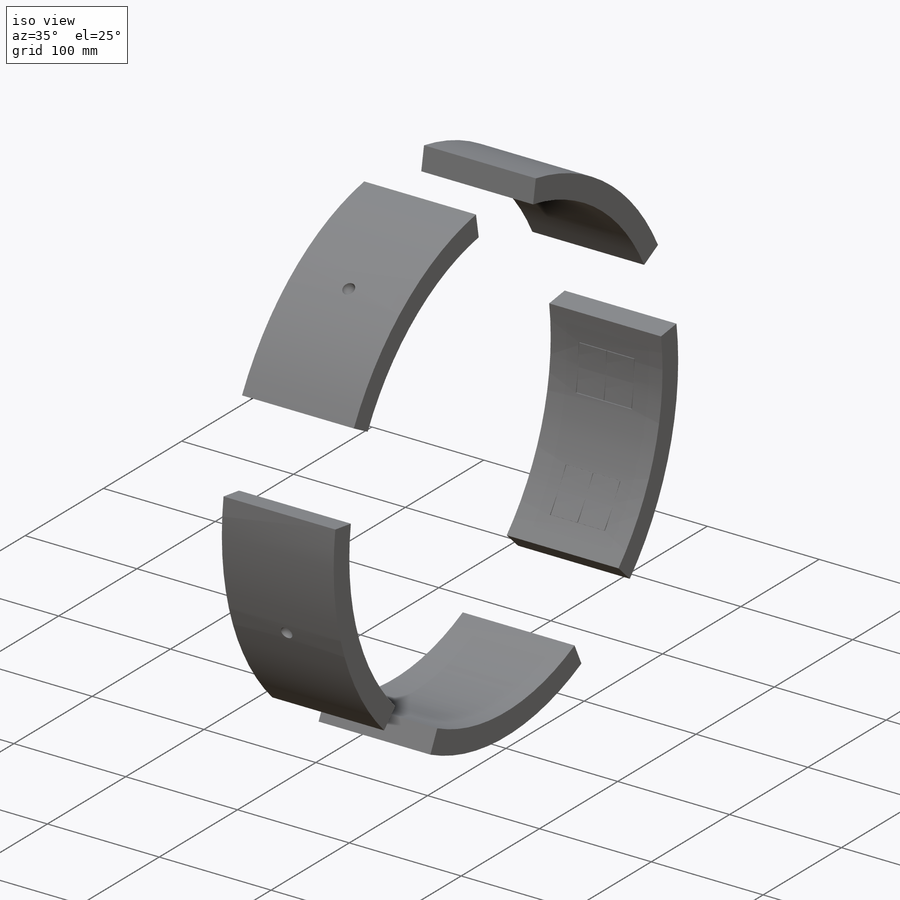
[diagram: iso view]
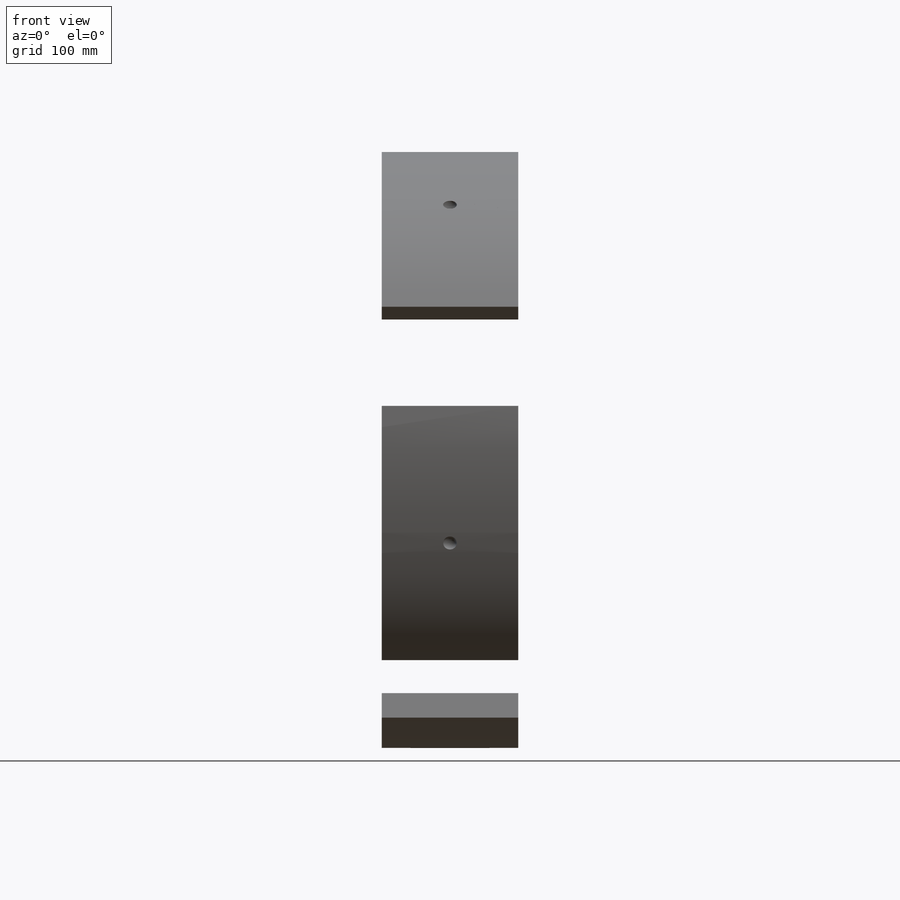
[diagram: front view]
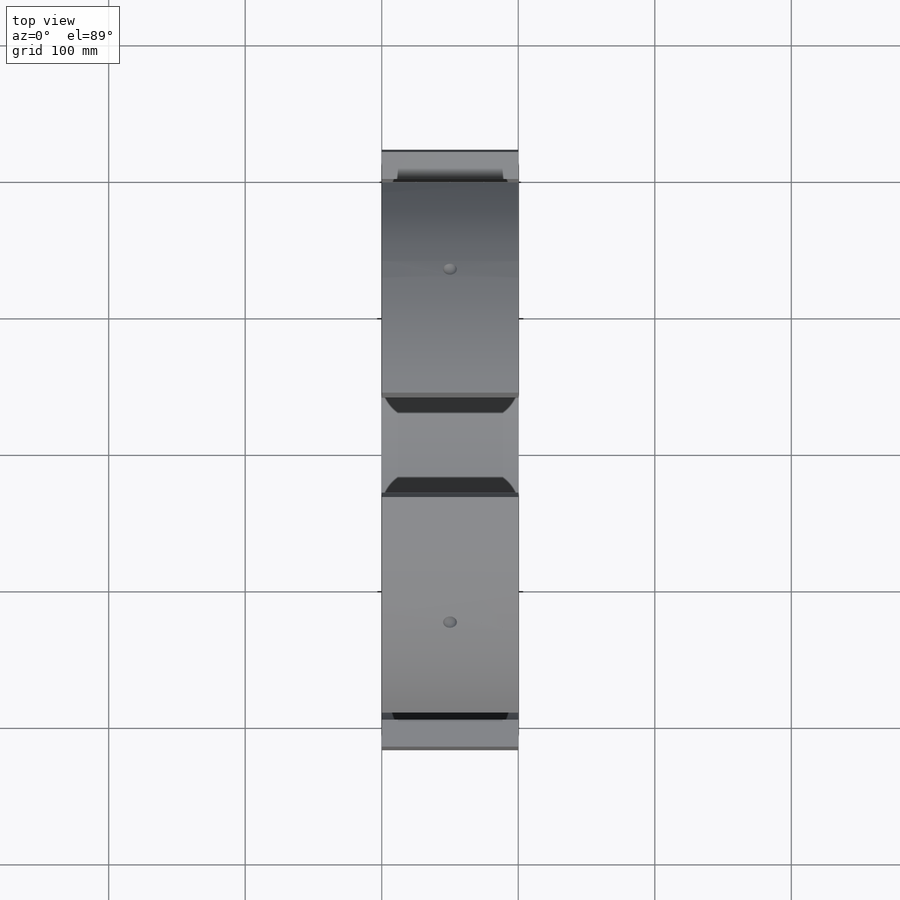
[diagram: top view]
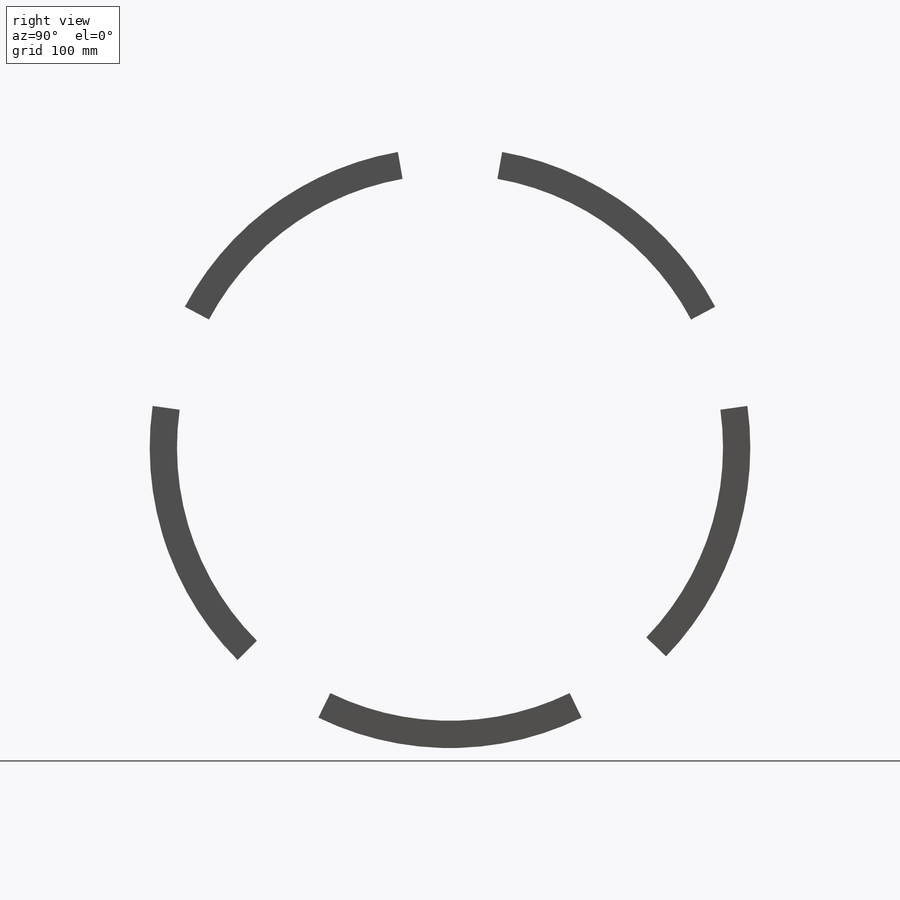
[diagram: right view]
SOLIDWORKS PART (.sldprt)
format: sldprt  version: not decoded by parser v0  size: 506,880 bytes
history: native  units: mm
features: sketch x13, plane x9, cut_revolve x5, cut_extrude x4, material x1, extrude x1, hole x1 (+12 scaffold rows collapsed)
feature tree (46):
  scaffold x12  (default folders/planes/origin — collapsed)
  material  "Material <not specified>"
  sketch  "Sketch1"  dims[c1.D1=~266.607392mm c2.D1=172.0deg]
  extrude  "Boss-Extrude1"  Depth=100mm
  plane  "Plane1"
  plane  "Plane2"
  plane  "Plane3"
  plane  "Plane4"
  plane  "Plane5"
  sketch  "Sketch2"  dims[D1=1.0mm]
  sketch  "Sketch4"  dims[D1=~9.927825mm]
  sketch  "Sketch5"  dims[D1=~7.54015mm]
  sketch  "Sketch6"  dims[D1=~16.897846mm]
  sketch  "Sketch7"  dims[D1=~14.550698mm]
  cut_revolve  "Cut-Revolve1"  Angle=360deg
  cut_revolve  "Cut-Revolve2"  Angle=360deg
  cut_revolve  "Cut-Revolve3"  Angle=360deg
  cut_revolve  "Cut-Revolve4"  Angle=360deg
  cut_revolve  "Cut-Revolve5"  Angle=360deg
  plane  "Plane6"  Offset=10mm
  sketch  "Sketch8"  dims[c1.D1=~219.038481mm c2.D1=77.0deg]
  hole  "1/2-13 Tapped Hole1"  Diameter=10.71626mm Depth=65.9mm
  sketch  "3DSketch1"
  sketch  "Sketch9"  dims[hole-wizard template sketch: 47 standard entries collapsed; hole parameters kept: c15.Tap Drill Depth=65.9mm c15.D3=~14.816244mm c15.Drill Angle=118.0deg]
  plane  "Plane7"
  sketch  "Sketch10"  dims[D1=39.0mm]
  cut_extrude  "Cut-Extrude6"  Depth=22mm
  sketch  "Sketch11"  dims[c1.D1=0.25mm c1.D2=0.25mm c1.D3=0.5mm c1.D4=39.0mm c2.D1=0.25mm c2.D2=0.25mm c2.D3=0.5mm c2.D4=49.0mm]
  cut_extrude  "Cut-Extrude7"  Depth=28mm
  plane  "Plane8"
  sketch  "Sketch12"  dims[c1.D1=~0.292969mm c1.D2=0.5mm c1.D3=~48.963362mm c2.D1=0.25mm c2.D3=0.25mm c2.D4=0.25mm]
  cut_extrude  "Cut-Extrude10"  Depth=11mm
  plane  "Plane9"  Offset=0mm
  sketch  "Sketch13"  dims[D1=0.5mm]
  cut_extrude  "Cut-Extrude11"  Depth=10mm
decode coverage: 23 of 24 modeling features carry decoded parameters
note: ~ marks probable driven/reference dimensions
note: suppression state not decoded; provenance and decode notes live in map.json
